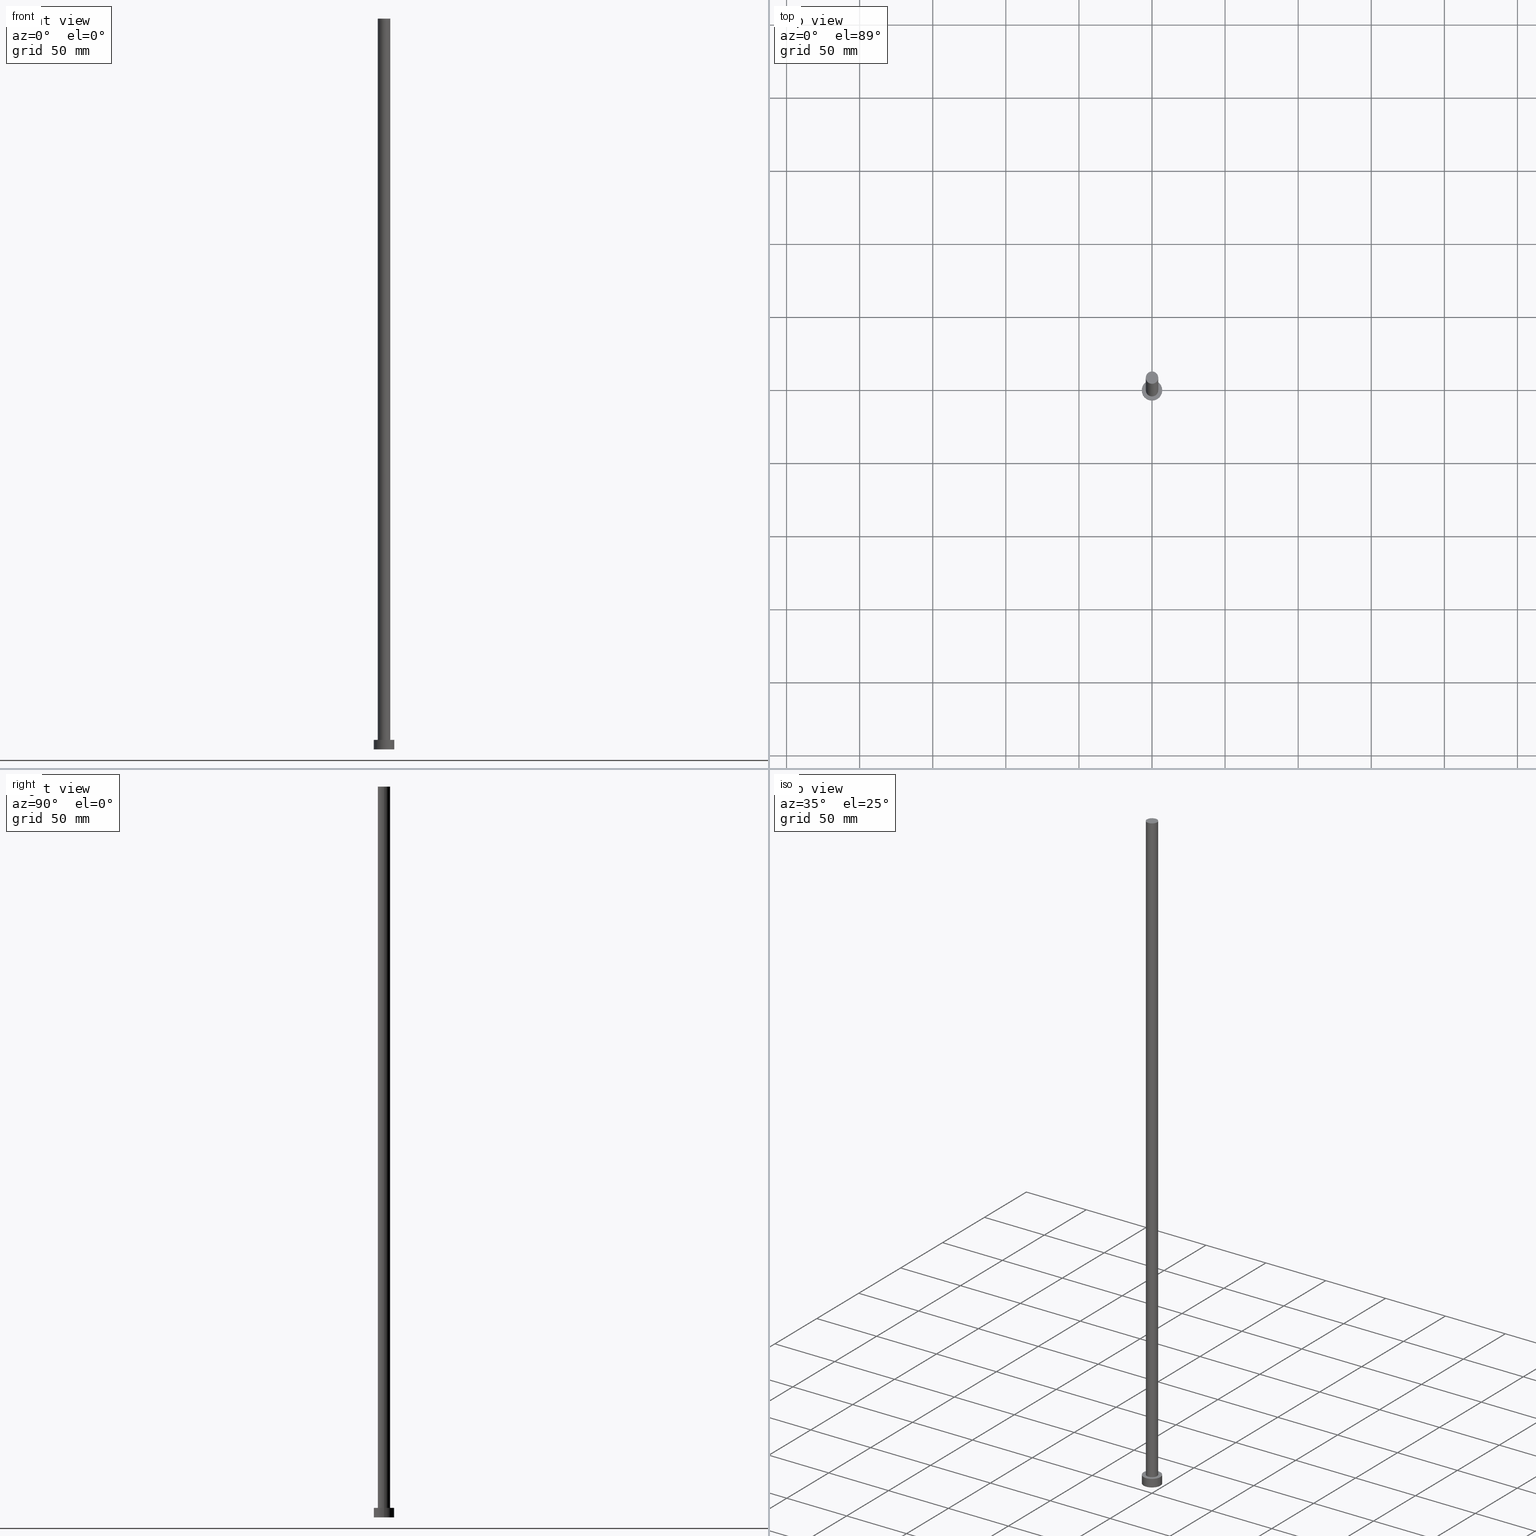
[diagram: canonical four-view strip — front | top / right | iso, engineering-drawing reading convention]
A machine part, canonical four-view strip (front | top / right | iso — engineering-drawing reading convention). The complete STEP part file that produces these views, byte-faithful:
ISO-10303-21;
HEADER;
FILE_DESCRIPTION (( 'STEP AP203' ),
    '1' );
FILE_NAME ('ae8b.STEP',
    '2023-02-13T13:47:37',
    ( '' ),
    ( '' ),
    'SwSTEP 2.0',
    'SolidWorks 2019',
    '' );
FILE_SCHEMA (( 'CONFIG_CONTROL_DESIGN' ));
ENDSEC;

DATA;
#1 = ADVANCED_BREP_SHAPE_REPRESENTATION ( 'ae8b', ( #191, #114 ), #169 ) ;
#2 = DATE_AND_TIME ( #180, #218 ) ;
#3 = ORGANIZATION ( 'NEUR�EN�', 'NEUR�EN�', '' ) ;
#4 = EDGE_CURVE ( 'NONE', #120, #69, #159, .T. ) ;
#5 = CARTESIAN_POINT ( 'NONE',  ( 0.000000000000000000, 0.000000000000000000, 500.0000000000000000 ) ) ;
#6 = DATE_AND_TIME ( #100, #156 ) ;
#7 = DIRECTION ( 'NONE',  ( 1.000000000000000000, 0.000000000000000000, -0.000000000000000000 ) ) ;
#8 = FACE_OUTER_BOUND ( 'NONE', #189, .T. ) ;
#9 = ADVANCED_FACE ( 'NONE', ( #21, #102 ), #235, .T. ) ;
#10 = ORIENTED_EDGE ( 'NONE', *, *, #190, .T. ) ;
#11 = DIRECTION ( 'NONE',  ( 1.000000000000000000, 0.000000000000000000, 0.000000000000000000 ) ) ;
#12 = ORIENTED_EDGE ( 'NONE', *, *, #217, .F. ) ;
#13 = CARTESIAN_POINT ( 'NONE',  ( 4.250000000000000000, 5.204748896376250699E-16, 500.0000000000000000 ) ) ;
#14 = CARTESIAN_POINT ( 'NONE',  ( -4.250000000000000000, 0.000000000000000000, 6.500000000000000000 ) ) ;
#15 = APPROVAL ( #245, 'NEUR�EN�' ) ;
#16 = AXIS2_PLACEMENT_3D ( 'NONE', #5, #55, #135 ) ;
#17 = DIRECTION ( 'NONE',  ( 0.000000000000000000, 0.000000000000000000, 1.000000000000000000 ) ) ;
#18 = DIRECTION ( 'NONE',  ( -0.000000000000000000, -0.000000000000000000, -1.000000000000000000 ) ) ;
#19 = AXIS2_PLACEMENT_3D ( 'NONE', #113, #193, #184 ) ;
#20 = PERSON_AND_ORGANIZATION_ROLE ( 'design_supplier' ) ;
#21 = FACE_BOUND ( 'NONE', #233, .T. ) ;
#22 = COORDINATED_UNIVERSAL_TIME_OFFSET ( 1, 0, .AHEAD. ) ;
#23 = ADVANCED_FACE ( 'NONE', ( #43 ), #122, .T. ) ;
#24 = LINE ( 'NONE', #214, #210 ) ;
#25 = CIRCLE ( 'NONE', #132, 7.000000000000000000 ) ;
#26 = ORIENTED_EDGE ( 'NONE', *, *, #196, .T. ) ;
#27 = CARTESIAN_POINT ( 'NONE',  ( 0.000000000000000000, 0.000000000000000000, 500.0000000000000000 ) ) ;
#28 = LOCAL_TIME ( 14, 47, 37.00000000000000000, #22 ) ;
#29 = ORIENTED_EDGE ( 'NONE', *, *, #239, .F. ) ;
#30 = ORIENTED_EDGE ( 'NONE', *, *, #144, .F. ) ;
#31 = PERSON ( 'NEUR�EN�', 'NEUR�EN�', 'NEUR�EN�', ('NEUR�EN�'), ('NEUR�EN�'), ('NEUR�EN�') ) ;
#32 = APPROVAL_PERSON_ORGANIZATION ( #197, #50, #60 ) ;
#33 = PLANE ( 'NONE',  #198 ) ;
#34 = CIRCLE ( 'NONE', #16, 4.250000000000000000 ) ;
#35 = PERSON_AND_ORGANIZATION_ROLE ( 'creator' ) ;
#36 = PRODUCT_RELATED_PRODUCT_CATEGORY ( 'detail', '', ( #147 ) ) ;
#37 = DIRECTION ( 'NONE',  ( -0.000000000000000000, -0.000000000000000000, -1.000000000000000000 ) ) ;
#38 = CC_DESIGN_SECURITY_CLASSIFICATION ( #212, ( #151 ) ) ;
#39 = PERSON_AND_ORGANIZATION_ROLE ( 'classification_officer' ) ;
#40 = DIRECTION ( 'NONE',  ( 0.000000000000000000, 0.000000000000000000, 1.000000000000000000 ) ) ;
#41 = ORIENTED_EDGE ( 'NONE', *, *, #46, .F. ) ;
#42 = CARTESIAN_POINT ( 'NONE',  ( 4.250000000000000000, 5.204748896376250699E-16, 500.0000000000000000 ) ) ;
#43 = FACE_OUTER_BOUND ( 'NONE', #45, .T. ) ;
#44 = PERSON_AND_ORGANIZATION ( #31, #3 ) ;
#45 = EDGE_LOOP ( 'NONE', ( #12, #167, #185, #41 ) ) ;
#46 = EDGE_CURVE ( 'NONE', #120, #253, #67, .T. ) ;
#47 = DIRECTION ( 'NONE',  ( -1.000000000000000000, 0.000000000000000000, 0.000000000000000000 ) ) ;
#48 = CALENDAR_DATE ( 2023, 13, 2 ) ;
#49 = CIRCLE ( 'NONE', #199, 4.250000000000000000 ) ;
#50 = APPROVAL ( #98, 'NEUR�EN�' ) ;
#51 = UNCERTAINTY_MEASURE_WITH_UNIT (LENGTH_MEASURE( 1.000000000000000082E-05 ), #249, 'distance_accuracy_value', 'NONE');
#52 = CC_DESIGN_APPROVAL ( #121, ( #179 ) ) ;
#53 = CC_DESIGN_PERSON_AND_ORGANIZATION_ASSIGNMENT ( #200, #20, ( #151 ) ) ;
#54 = DIRECTION ( 'NONE',  ( 1.000000000000000000, 0.000000000000000000, 0.000000000000000000 ) ) ;
#55 = DIRECTION ( 'NONE',  ( 0.000000000000000000, 0.000000000000000000, 1.000000000000000000 ) ) ;
#56 = CLOSED_SHELL ( 'NONE', ( #23, #242, #203, #9, #222, #136, #172 ) ) ;
#57 = APPROVAL_ROLE ( '' ) ;
#58 = APPROVAL_PERSON_ORGANIZATION ( #44, #121, #57 ) ;
#59 = CARTESIAN_POINT ( 'NONE',  ( 7.000000000000000000, 8.572527594031471218E-16, 6.500000000000000000 ) ) ;
#60 = APPROVAL_ROLE ( '' ) ;
#61 = ORIENTED_EDGE ( 'NONE', *, *, #46, .T. ) ;
#62 = DIRECTION ( 'NONE',  ( 1.000000000000000000, 0.000000000000000000, 0.000000000000000000 ) ) ;
#63 = ORIENTED_EDGE ( 'NONE', *, *, #190, .F. ) ;
#64 = DATE_AND_TIME ( #48, #223 ) ;
#65 = APPLICATION_PROTOCOL_DEFINITION ( 'international standard', 'config_control_design', 1994, #78 ) ;
#66 = VECTOR ( 'NONE', #204, 1000.000000000000000 ) ;
#67 = LINE ( 'NONE', #230, #216 ) ;
#68 = DATE_TIME_ROLE ( 'classification_date' ) ;
#69 = VERTEX_POINT ( 'NONE', #13 ) ;
#70 = DIRECTION ( 'NONE',  ( -0.000000000000000000, -0.000000000000000000, -1.000000000000000000 ) ) ;
#71 = CARTESIAN_POINT ( 'NONE',  ( 0.000000000000000000, 0.000000000000000000, 500.0000000000000000 ) ) ;
#72 = DIRECTION ( 'NONE',  ( 0.000000000000000000, 0.000000000000000000, 1.000000000000000000 ) ) ;
#73 = FACE_OUTER_BOUND ( 'NONE', #164, .T. ) ;
#74 = CC_DESIGN_PERSON_AND_ORGANIZATION_ASSIGNMENT ( #79, #39, ( #212 ) ) ;
#75 = AXIS2_PLACEMENT_3D ( 'NONE', #71, #202, #205 ) ;
#76 = COORDINATED_UNIVERSAL_TIME_OFFSET ( 1, 0, .AHEAD. ) ;
#77 = DIRECTION ( 'NONE',  ( 1.000000000000000000, 0.000000000000000000, 0.000000000000000000 ) ) ;
#78 = APPLICATION_CONTEXT ( 'configuration controlled 3d designs of mechanical parts and assemblies' ) ;
#79 = PERSON_AND_ORGANIZATION ( #31, #3 ) ;
#80 = CIRCLE ( 'NONE', #236, 7.000000000000000000 ) ;
#81 = CIRCLE ( 'NONE', #192, 7.000000000000000000 ) ;
#82 = ORIENTED_EDGE ( 'NONE', *, *, #4, .T. ) ;
#83 = PLANE ( 'NONE',  #110 ) ;
#84 = VERTEX_POINT ( 'NONE', #90 ) ;
#85 = PERSON_AND_ORGANIZATION ( #31, #3 ) ;
#86 = FACE_OUTER_BOUND ( 'NONE', #166, .T. ) ;
#87 = DIRECTION ( 'NONE',  ( -0.000000000000000000, -0.000000000000000000, -1.000000000000000000 ) ) ;
#88 = EDGE_CURVE ( 'NONE', #148, #152, #140, .T. ) ;
#89 =( NAMED_UNIT ( * ) PLANE_ANGLE_UNIT ( ) SI_UNIT ( $, .RADIAN. ) );
#90 = CARTESIAN_POINT ( 'NONE',  ( -7.000000000000000000, 0.000000000000000000, 6.500000000000000000 ) ) ;
#91 = CARTESIAN_POINT ( 'NONE',  ( 0.000000000000000000, 0.000000000000000000, 0.000000000000000000 ) ) ;
#92 = AXIS2_PLACEMENT_3D ( 'NONE', #126, #72, #173 ) ;
#93 = CARTESIAN_POINT ( 'NONE',  ( 7.000000000000000000, 8.572527594031471218E-16, 0.000000000000000000 ) ) ;
#94 = EDGE_CURVE ( 'NONE', #152, #148, #25, .T. ) ;
#95 = DIRECTION ( 'NONE',  ( 0.000000000000000000, 0.000000000000000000, 1.000000000000000000 ) ) ;
#96 = DATE_TIME_ROLE ( 'creation_date' ) ;
#97 = AXIS2_PLACEMENT_3D ( 'NONE', #238, #182, #226 ) ;
#98 = APPROVAL_STATUS ( 'not_yet_approved' ) ;
#99 = CIRCLE ( 'NONE', #129, 4.250000000000000000 ) ;
#100 = CALENDAR_DATE ( 2023, 13, 2 ) ;
#101 = CARTESIAN_POINT ( 'NONE',  ( 0.000000000000000000, 0.000000000000000000, 500.0000000000000000 ) ) ;
#102 = FACE_OUTER_BOUND ( 'NONE', #143, .T. ) ;
#103 = CYLINDRICAL_SURFACE ( 'NONE', #97, 7.000000000000000000 ) ;
#104 = ORIENTED_EDGE ( 'NONE', *, *, #94, .F. ) ;
#105 = CYLINDRICAL_SURFACE ( 'NONE', #19, 4.250000000000000000 ) ;
#106 = CC_DESIGN_APPROVAL ( #50, ( #151 ) ) ;
#107 = ORIENTED_EDGE ( 'NONE', *, *, #88, .T. ) ;
#108 =( NAMED_UNIT ( * ) SI_UNIT ( $, .STERADIAN. ) SOLID_ANGLE_UNIT ( ) );
#109 = ORIENTED_EDGE ( 'NONE', *, *, #88, .F. ) ;
#110 = AXIS2_PLACEMENT_3D ( 'NONE', #165, #95, #215 ) ;
#111 = VECTOR ( 'NONE', #37, 1000.000000000000000 ) ;
#112 = LINE ( 'NONE', #42, #66 ) ;
#113 = CARTESIAN_POINT ( 'NONE',  ( 0.000000000000000000, 0.000000000000000000, 500.0000000000000000 ) ) ;
#114 = AXIS2_PLACEMENT_3D ( 'NONE', #188, #252, #150 ) ;
#115 = COORDINATED_UNIVERSAL_TIME_OFFSET ( 1, 0, .AHEAD. ) ;
#116 = EDGE_CURVE ( 'NONE', #69, #154, #112, .T. ) ;
#117 = FACE_OUTER_BOUND ( 'NONE', #181, .T. ) ;
#118 = ORIENTED_EDGE ( 'NONE', *, *, #176, .F. ) ;
#119 = CARTESIAN_POINT ( 'NONE',  ( -7.000000000000000000, 0.000000000000000000, 0.000000000000000000 ) ) ;
#120 = VERTEX_POINT ( 'NONE', #142 ) ;
#121 = APPROVAL ( #211, 'NEUR�EN�' ) ;
#122 = CYLINDRICAL_SURFACE ( 'NONE', #220, 4.250000000000000000 ) ;
#123 = MECHANICAL_CONTEXT ( 'NONE', #78, 'mechanical' ) ;
#124 = DIRECTION ( 'NONE',  ( -0.000000000000000000, -0.000000000000000000, -1.000000000000000000 ) ) ;
#125 = DIRECTION ( 'NONE',  ( -1.000000000000000000, 0.000000000000000000, 0.000000000000000000 ) ) ;
#126 = CARTESIAN_POINT ( 'NONE',  ( 0.000000000000000000, 0.000000000000000000, 0.000000000000000000 ) ) ;
#127 = APPROVAL_DATE_TIME ( #64, #15 ) ;
#128 = APPLICATION_PROTOCOL_DEFINITION ( 'international standard', 'config_control_design', 1994, #175 ) ;
#129 = AXIS2_PLACEMENT_3D ( 'NONE', #141, #224, #11 ) ;
#130 = CC_DESIGN_PERSON_AND_ORGANIZATION_ASSIGNMENT ( #219, #163, ( #151 ) ) ;
#131 = CC_DESIGN_DATE_AND_TIME_ASSIGNMENT ( #195, #96, ( #179 ) ) ;
#132 = AXIS2_PLACEMENT_3D ( 'NONE', #91, #171, #62 ) ;
#133 = DESIGN_CONTEXT ( 'detailed design', #175, 'design' ) ;
#134 = CARTESIAN_POINT ( 'NONE',  ( 0.000000000000000000, 0.000000000000000000, 6.500000000000000000 ) ) ;
#135 = DIRECTION ( 'NONE',  ( 1.000000000000000000, 0.000000000000000000, 0.000000000000000000 ) ) ;
#136 = ADVANCED_FACE ( 'NONE', ( #194 ), #105, .T. ) ;
#137 = APPROVAL_DATE_TIME ( #6, #121 ) ;
#138 = APPROVAL_DATE_TIME ( #2, #50 ) ;
#139 = COORDINATED_UNIVERSAL_TIME_OFFSET ( 1, 0, .AHEAD. ) ;
#140 = CIRCLE ( 'NONE', #92, 7.000000000000000000 ) ;
#141 = CARTESIAN_POINT ( 'NONE',  ( 0.000000000000000000, 0.000000000000000000, 6.500000000000000000 ) ) ;
#142 = CARTESIAN_POINT ( 'NONE',  ( -4.250000000000000000, 0.000000000000000000, 500.0000000000000000 ) ) ;
#143 = EDGE_LOOP ( 'NONE', ( #10, #209 ) ) ;
#144 = EDGE_CURVE ( 'NONE', #253, #154, #99, .T. ) ;
#145 = DIRECTION ( 'NONE',  ( 0.000000000000000000, 0.000000000000000000, 1.000000000000000000 ) ) ;
#146 = ORIENTED_EDGE ( 'NONE', *, *, #196, .F. ) ;
#147 = PRODUCT ( 'ae8b', 'ae8b', '', ( #123 ) ) ;
#148 = VERTEX_POINT ( 'NONE', #119 ) ;
#149 = COORDINATED_UNIVERSAL_TIME_OFFSET ( 1, 0, .AHEAD. ) ;
#150 = DIRECTION ( 'NONE',  ( 1.000000000000000000, 0.000000000000000000, 0.000000000000000000 ) ) ;
#151 = PRODUCT_DEFINITION_FORMATION_WITH_SPECIFIED_SOURCE ( 'LIBOVOLN�', '', #147, .NOT_KNOWN. ) ;
#152 = VERTEX_POINT ( 'NONE', #93 ) ;
#153 = PERSON_AND_ORGANIZATION_ROLE ( 'design_owner' ) ;
#154 = VERTEX_POINT ( 'NONE', #254 ) ;
#155 = AXIS2_PLACEMENT_3D ( 'NONE', #227, #186, #7 ) ;
#156 = LOCAL_TIME ( 14, 47, 37.00000000000000000, #139 ) ;
#157 = CC_DESIGN_PERSON_AND_ORGANIZATION_ASSIGNMENT ( #160, #35, ( #179 ) ) ;
#158 = CARTESIAN_POINT ( 'NONE',  ( 0.000000000000000000, 0.000000000000000000, 6.500000000000000000 ) ) ;
#159 = CIRCLE ( 'NONE', #75, 4.250000000000000000 ) ;
#160 = PERSON_AND_ORGANIZATION ( #31, #3 ) ;
#161 = CC_DESIGN_PERSON_AND_ORGANIZATION_ASSIGNMENT ( #229, #153, ( #147 ) ) ;
#162 = SECURITY_CLASSIFICATION_LEVEL ( 'unclassified' ) ;
#163 = PERSON_AND_ORGANIZATION_ROLE ( 'creator' ) ;
#164 = EDGE_LOOP ( 'NONE', ( #29, #63, #26, #107 ) ) ;
#165 = CARTESIAN_POINT ( 'NONE',  ( 0.000000000000000000, 0.000000000000000000, 0.000000000000000000 ) ) ;
#166 = EDGE_LOOP ( 'NONE', ( #82, #183 ) ) ;
#167 = ORIENTED_EDGE ( 'NONE', *, *, #116, .T. ) ;
#168 = VERTEX_POINT ( 'NONE', #221 ) ;
#169 =( GEOMETRIC_REPRESENTATION_CONTEXT ( 3 ) GLOBAL_UNCERTAINTY_ASSIGNED_CONTEXT ( ( #51 ) ) GLOBAL_UNIT_ASSIGNED_CONTEXT ( ( #249, #89, #108 ) ) REPRESENTATION_CONTEXT ( 'NONE', 'WORKASPACE' ) );
#170 = ORIENTED_EDGE ( 'NONE', *, *, #239, .T. ) ;
#171 = DIRECTION ( 'NONE',  ( 0.000000000000000000, 0.000000000000000000, 1.000000000000000000 ) ) ;
#172 = ADVANCED_FACE ( 'NONE', ( #86 ), #33, .T. ) ;
#173 = DIRECTION ( 'NONE',  ( 1.000000000000000000, 0.000000000000000000, 0.000000000000000000 ) ) ;
#174 = AXIS2_PLACEMENT_3D ( 'NONE', #232, #70, #125 ) ;
#175 = APPLICATION_CONTEXT ( 'configuration controlled 3d designs of mechanical parts and assemblies' ) ;
#176 = EDGE_CURVE ( 'NONE', #154, #253, #49, .T. ) ;
#177 = DIRECTION ( 'NONE',  ( 1.000000000000000000, 0.000000000000000000, 0.000000000000000000 ) ) ;
#178 = DIRECTION ( 'NONE',  ( 0.000000000000000000, 0.000000000000000000, 1.000000000000000000 ) ) ;
#179 = PRODUCT_DEFINITION ( 'NEZN�M�', '', #151, #133 ) ;
#180 = CALENDAR_DATE ( 2023, 13, 2 ) ;
#181 = EDGE_LOOP ( 'NONE', ( #250, #170, #208, #146 ) ) ;
#182 = DIRECTION ( 'NONE',  ( -0.000000000000000000, -0.000000000000000000, -1.000000000000000000 ) ) ;
#183 = ORIENTED_EDGE ( 'NONE', *, *, #217, .T. ) ;
#184 = DIRECTION ( 'NONE',  ( -1.000000000000000000, 0.000000000000000000, 0.000000000000000000 ) ) ;
#185 = ORIENTED_EDGE ( 'NONE', *, *, #176, .T. ) ;
#186 = DIRECTION ( 'NONE',  ( 0.000000000000000000, 0.000000000000000000, 1.000000000000000000 ) ) ;
#187 = DATE_AND_TIME ( #255, #28 ) ;
#188 = CARTESIAN_POINT ( 'NONE',  ( 0.000000000000000000, 0.000000000000000000, 0.000000000000000000 ) ) ;
#189 = EDGE_LOOP ( 'NONE', ( #109, #104 ) ) ;
#190 = EDGE_CURVE ( 'NONE', #84, #168, #81, .T. ) ;
#191 = MANIFOLD_SOLID_BREP ( 'P�idat vysunut�m3', #56 ) ;
#192 = AXIS2_PLACEMENT_3D ( 'NONE', #134, #145, #177 ) ;
#193 = DIRECTION ( 'NONE',  ( -0.000000000000000000, -0.000000000000000000, -1.000000000000000000 ) ) ;
#194 = FACE_OUTER_BOUND ( 'NONE', #225, .T. ) ;
#195 = DATE_AND_TIME ( #243, #240 ) ;
#196 = EDGE_CURVE ( 'NONE', #84, #148, #24, .T. ) ;
#197 = PERSON_AND_ORGANIZATION ( #31, #3 ) ;
#198 = AXIS2_PLACEMENT_3D ( 'NONE', #101, #17, #237 ) ;
#199 = AXIS2_PLACEMENT_3D ( 'NONE', #158, #40, #54 ) ;
#200 = PERSON_AND_ORGANIZATION ( #31, #3 ) ;
#201 = APPROVAL_PERSON_ORGANIZATION ( #85, #15, #248 ) ;
#202 = DIRECTION ( 'NONE',  ( 0.000000000000000000, 0.000000000000000000, 1.000000000000000000 ) ) ;
#203 = ADVANCED_FACE ( 'NONE', ( #73 ), #103, .T. ) ;
#204 = DIRECTION ( 'NONE',  ( -0.000000000000000000, -0.000000000000000000, -1.000000000000000000 ) ) ;
#205 = DIRECTION ( 'NONE',  ( 1.000000000000000000, 0.000000000000000000, 0.000000000000000000 ) ) ;
#206 = ORIENTED_EDGE ( 'NONE', *, *, #4, .F. ) ;
#207 = CC_DESIGN_APPROVAL ( #15, ( #212 ) ) ;
#208 = ORIENTED_EDGE ( 'NONE', *, *, #94, .T. ) ;
#209 = ORIENTED_EDGE ( 'NONE', *, *, #228, .T. ) ;
#210 = VECTOR ( 'NONE', #18, 1000.000000000000000 ) ;
#211 = APPROVAL_STATUS ( 'not_yet_approved' ) ;
#212 = SECURITY_CLASSIFICATION ( '', '', #162 ) ;
#213 = CC_DESIGN_DATE_AND_TIME_ASSIGNMENT ( #187, #68, ( #212 ) ) ;
#214 = CARTESIAN_POINT ( 'NONE',  ( -7.000000000000000000, 0.000000000000000000, 6.500000000000000000 ) ) ;
#215 = DIRECTION ( 'NONE',  ( 1.000000000000000000, 0.000000000000000000, -0.000000000000000000 ) ) ;
#216 = VECTOR ( 'NONE', #124, 1000.000000000000000 ) ;
#217 = EDGE_CURVE ( 'NONE', #69, #120, #34, .T. ) ;
#218 = LOCAL_TIME ( 14, 47, 37.00000000000000000, #76 ) ;
#219 = PERSON_AND_ORGANIZATION ( #31, #3 ) ;
#220 = AXIS2_PLACEMENT_3D ( 'NONE', #27, #87, #47 ) ;
#221 = CARTESIAN_POINT ( 'NONE',  ( 7.000000000000000000, 8.572527594031471218E-16, 6.500000000000000000 ) ) ;
#222 = ADVANCED_FACE ( 'NONE', ( #8 ), #83, .F. ) ;
#223 = LOCAL_TIME ( 14, 47, 37.00000000000000000, #149 ) ;
#224 = DIRECTION ( 'NONE',  ( 0.000000000000000000, 0.000000000000000000, 1.000000000000000000 ) ) ;
#225 = EDGE_LOOP ( 'NONE', ( #247, #206, #61, #244 ) ) ;
#226 = DIRECTION ( 'NONE',  ( -1.000000000000000000, 0.000000000000000000, 0.000000000000000000 ) ) ;
#227 = CARTESIAN_POINT ( 'NONE',  ( 0.000000000000000000, 0.000000000000000000, 6.500000000000000000 ) ) ;
#228 = EDGE_CURVE ( 'NONE', #168, #84, #80, .T. ) ;
#229 = PERSON_AND_ORGANIZATION ( #31, #3 ) ;
#230 = CARTESIAN_POINT ( 'NONE',  ( -4.250000000000000000, 0.000000000000000000, 500.0000000000000000 ) ) ;
#231 = SHAPE_DEFINITION_REPRESENTATION ( #251, #1 ) ;
#232 = CARTESIAN_POINT ( 'NONE',  ( 0.000000000000000000, 0.000000000000000000, 6.500000000000000000 ) ) ;
#233 = EDGE_LOOP ( 'NONE', ( #30, #118 ) ) ;
#234 = CYLINDRICAL_SURFACE ( 'NONE', #174, 7.000000000000000000 ) ;
#235 = PLANE ( 'NONE',  #155 ) ;
#236 = AXIS2_PLACEMENT_3D ( 'NONE', #246, #178, #77 ) ;
#237 = DIRECTION ( 'NONE',  ( 1.000000000000000000, 0.000000000000000000, -0.000000000000000000 ) ) ;
#238 = CARTESIAN_POINT ( 'NONE',  ( 0.000000000000000000, 0.000000000000000000, 6.500000000000000000 ) ) ;
#239 = EDGE_CURVE ( 'NONE', #168, #152, #241, .T. ) ;
#240 = LOCAL_TIME ( 14, 47, 37.00000000000000000, #115 ) ;
#241 = LINE ( 'NONE', #59, #111 ) ;
#242 = ADVANCED_FACE ( 'NONE', ( #117 ), #234, .T. ) ;
#243 = CALENDAR_DATE ( 2023, 13, 2 ) ;
#244 = ORIENTED_EDGE ( 'NONE', *, *, #144, .T. ) ;
#245 = APPROVAL_STATUS ( 'not_yet_approved' ) ;
#246 = CARTESIAN_POINT ( 'NONE',  ( 0.000000000000000000, 0.000000000000000000, 6.500000000000000000 ) ) ;
#247 = ORIENTED_EDGE ( 'NONE', *, *, #116, .F. ) ;
#248 = APPROVAL_ROLE ( '' ) ;
#249 =( LENGTH_UNIT ( ) NAMED_UNIT ( * ) SI_UNIT ( .MILLI., .METRE. ) );
#250 = ORIENTED_EDGE ( 'NONE', *, *, #228, .F. ) ;
#251 = PRODUCT_DEFINITION_SHAPE ( 'NONE', 'NONE',  #179 ) ;
#252 = DIRECTION ( 'NONE',  ( 0.000000000000000000, 0.000000000000000000, 1.000000000000000000 ) ) ;
#253 = VERTEX_POINT ( 'NONE', #14 ) ;
#254 = CARTESIAN_POINT ( 'NONE',  ( 4.250000000000000000, 5.204748896376250699E-16, 6.500000000000000000 ) ) ;
#255 = CALENDAR_DATE ( 2023, 13, 2 ) ;
ENDSEC;
END-ISO-10303-21;
